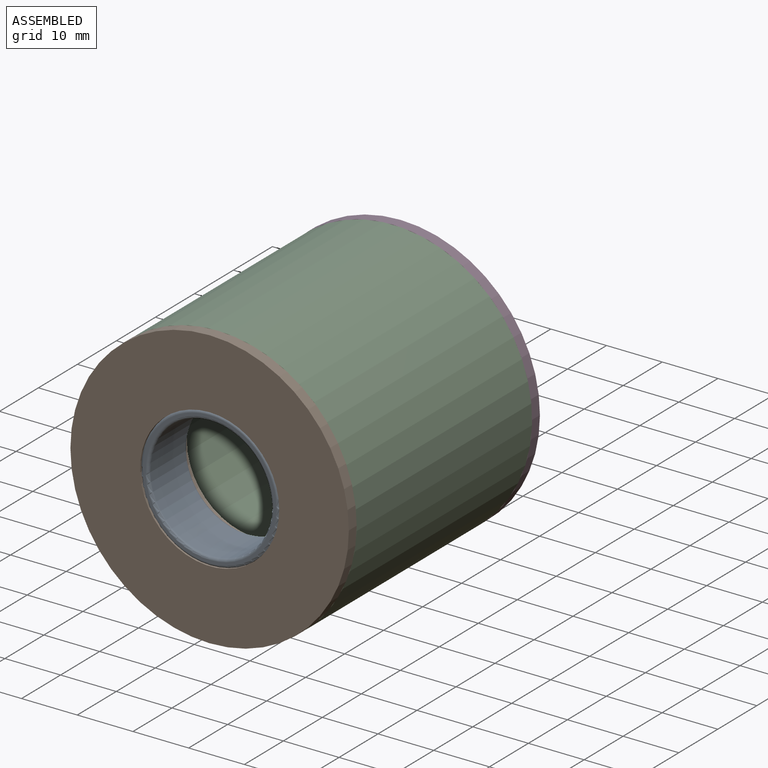
[diagram: assembled view]
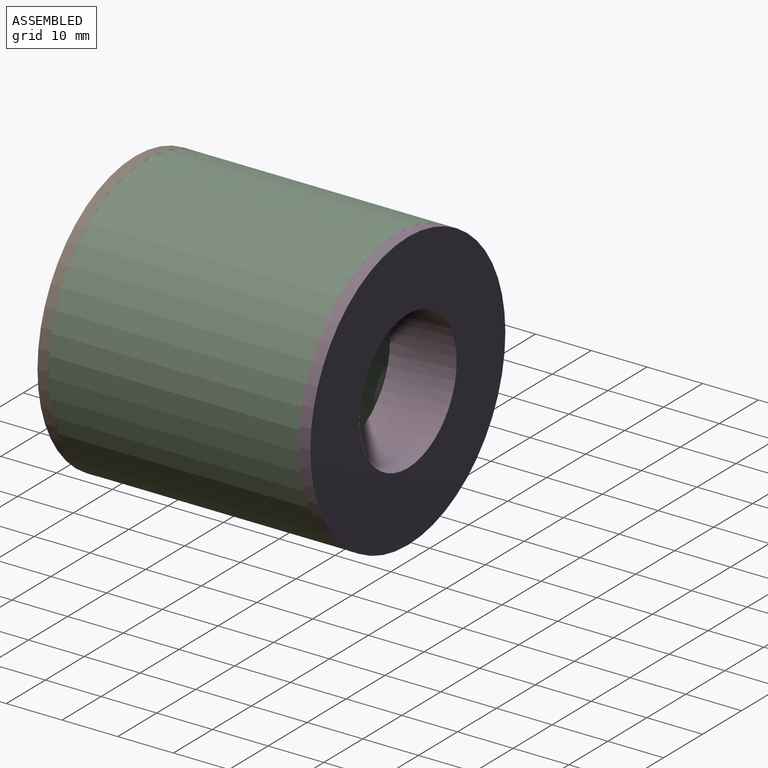
[diagram: assembled view, second angle]
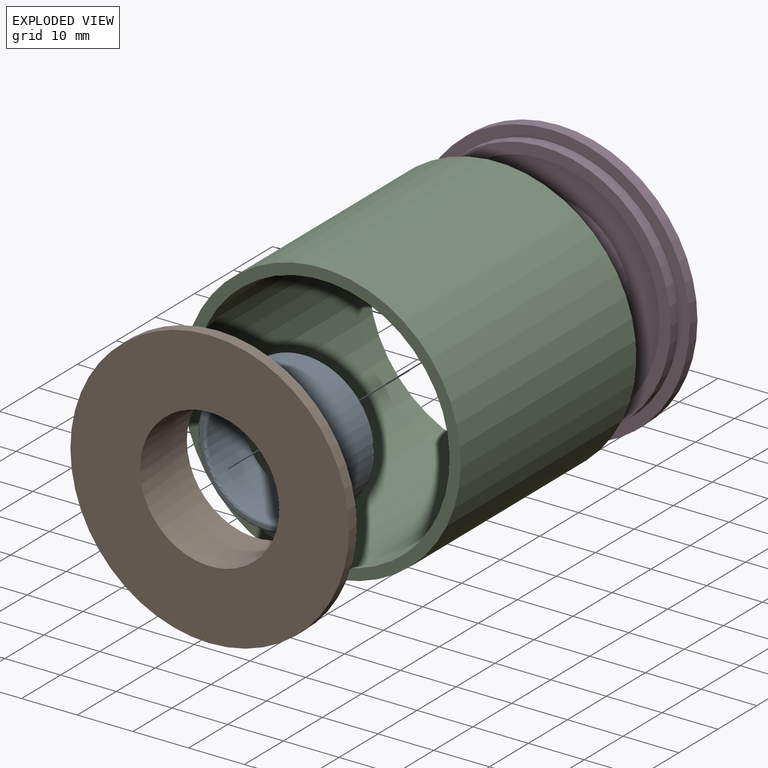
[diagram: exploded view]
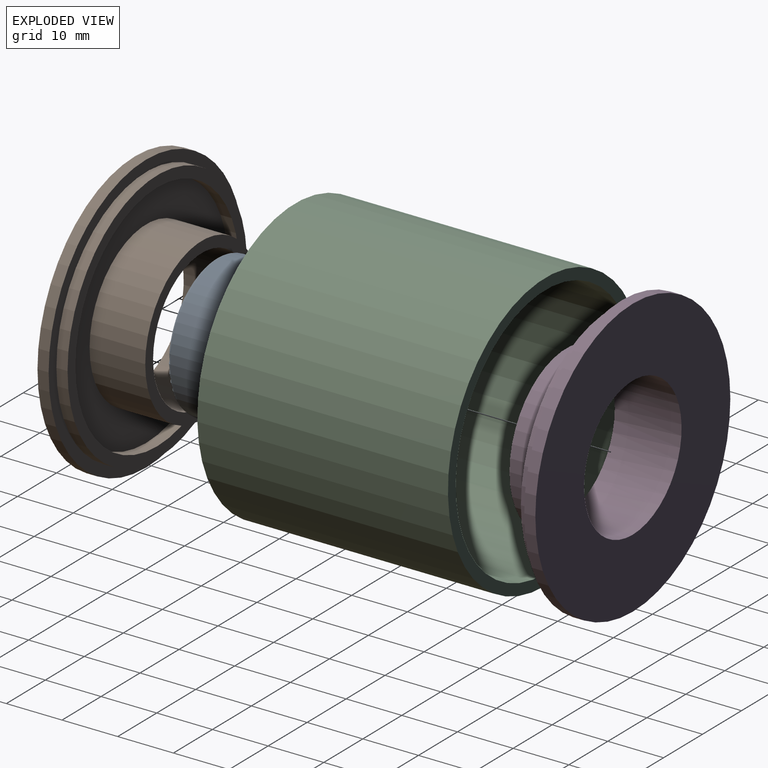
[diagram: exploded view, second angle]
ASSEMBLY  parts=4 mates=6
PART A: 8 faces, bbox 27.1x10x27.1 mm
  f0: cylinder r=11mm len=22mm, axis (0,1,0), area 622mm2, adj f4,f6
  f1: cylinder r=12.5mm len=25mm, axis (0,1,0), area 706.9mm2, adj f5,f7
  f2: plane 24x24mm, normal (0,-1,0), area 36.9mm2, adj f6,f7
  f3: plane 24x24mm, normal (0,1,0), area 36.9mm2, adj f4,f5
  f4: torus R=11.5mm, axis (0,-1,0), area 55.2mm2, adj f0,f3
  f5: torus R=12mm, axis (0,-1,0), area 60.8mm2, adj f1,f3
  f6: torus R=11.5mm, axis (0,-1,0), area 55.2mm2, adj f0,f2
  f7: torus R=12mm, axis (0,-1,0), area 60.8mm2, adj f1,f2
PART B: 10 faces, bbox 50x12x50 mm
  f0: cylinder r=25mm len=50mm, axis (0,1,0), area 314.2mm2, adj f1,f2
  f1: plane 50x50mm, normal (0,-1,0), area 301.6mm2, adj f0,f4
  f2: plane 50x50mm, normal (0,1,0), area 1472.6mm2, adj f0,f7
  f3: cylinder r=21mm len=42mm, axis (0,1,0), area 263.9mm2, adj f5,f6
  f4: cylinder r=23mm len=46mm, axis (0,1,0), area 289mm2, adj f1,f5
  f5: plane 46x46mm, normal (0,-1,0), area 276.5mm2, adj f3,f4
  f6: plane 42x42mm, normal (0,-1,0), area 724.9mm2, adj f3,f8
  f7: cylinder r=12.5mm len=25mm, axis (0,1,0), area 942.5mm2, adj f2,f9
  f8: cylinder r=14.5mm len=29mm, axis (0,1,0), area 911.1mm2, adj f6,f9
  f9: plane 29x29mm, normal (0,-1,0), area 169.6mm2, adj f7,f8
PART C: 4 faces, bbox 50x45x50 mm
  f0: cylinder r=23mm len=46mm, axis (0,1,0), area 6503.1mm2, adj f2,f3
  f1: cylinder r=25mm len=50mm, axis (0,1,0), area 7068.6mm2, adj f2,f3
  f2: plane 50x50mm, normal (0,-1,0), area 301.6mm2, adj f0,f1
  f3: plane 50x50mm, normal (0,1,0), area 301.6mm2, adj f0,f1
PART D: same geometry as B
PLACE A t=(23.22,-40.66,2.47)mm
PLACE B rot(axis=(1,0,0),180deg) t=(23.22,-50.66,2.47)mm
PLACE C t=(23.22,-3.66,2.47)mm
PLACE D t=(23.22,-1.66,2.47)mm
MATE cylindrical C.f1 <-> D.f0  axis (0,1,0) through (23.22,-3.66,2.47)mm
MATE planar B.f0 <-> A.f1  axis (0,-1,0) through (23.22,-50.66,2.47)mm
MATE planar C.f0 <-> D.f3  axis (0,1,0) through (23.22,-3.66,2.47)mm
MATE cylindrical B.f3 <-> A.f1  axis (0,1,0) through (23.22,-38.66,2.47)mm
MATE planar C.f1 <-> B.f3  axis (0,-1,0) through (23.22,-48.66,2.47)mm
MATE cylindrical C.f1 <-> B.f0  axis (0,1,0) through (23.22,-26.16,2.47)mm
